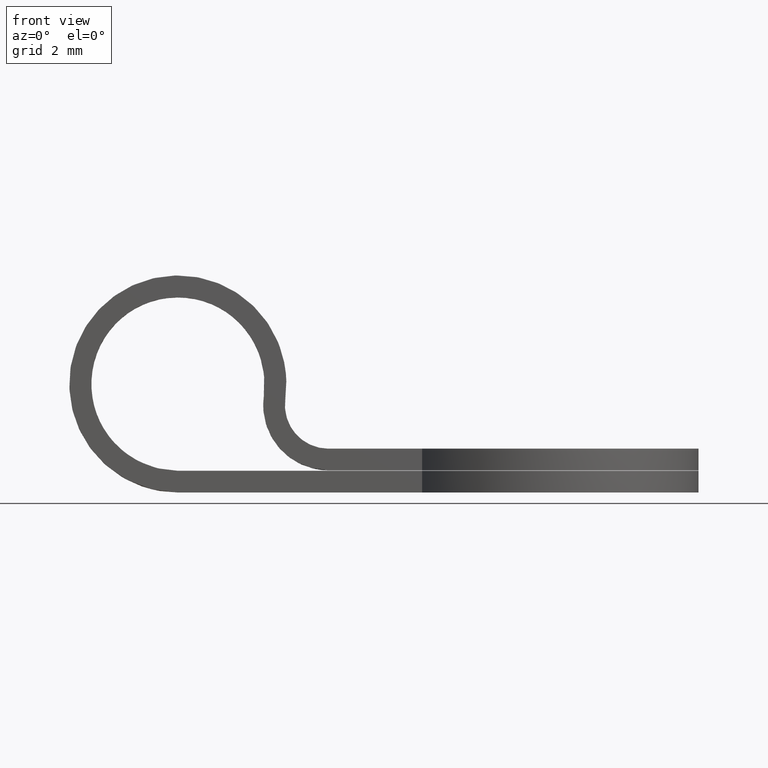
[diagram: clean part render]
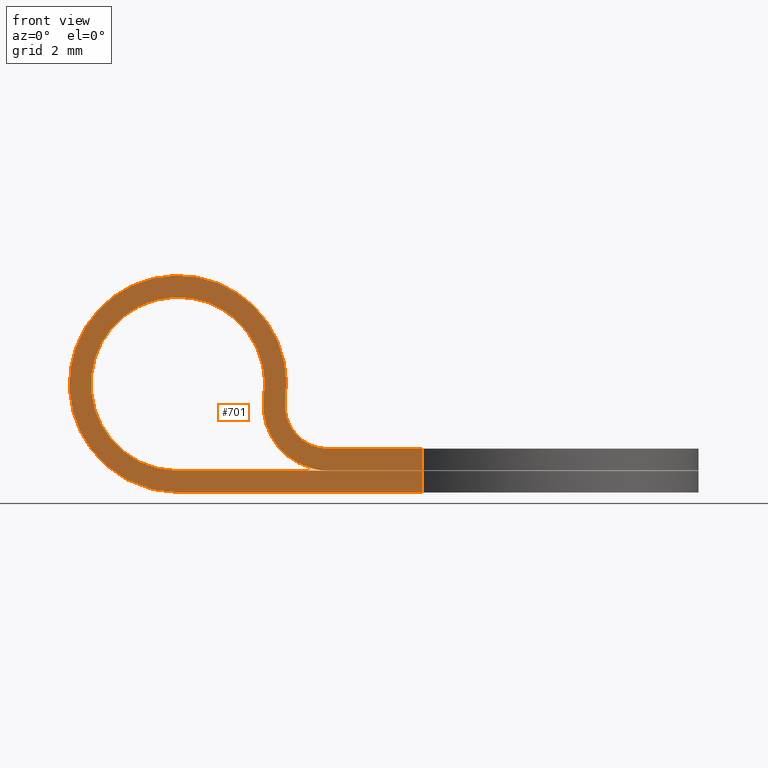
[diagram: same view with one face highlighted and labeled with its STEP entity id]
A machine part, front view. The second image highlights one B-rep face of the part: STEP entity #701.
In plain terms, the highlighted face is a freeform B-spline surface patch.
Its self-contained STEP definition (entity closure, byte-faithful):
#561=CARTESIAN_POINT('',(3.865530262456245,-2.000000000000225,-1.490000000000000));
#562=VERTEX_POINT('',#561);
#569=CARTESIAN_POINT('',(2.875378758897320,-2.000000000000225,-0.350000000000000));
#570=VERTEX_POINT('',#569);
#576=CARTESIAN_POINT('',(3.865530262456245,-2.000000000000225,-1.490000000000000));
#577=CARTESIAN_POINT('',(3.409551855881486,-2.000000000000225,-1.490000000000000));
#578=CARTESIAN_POINT('',(3.110546818929170,-2.000000000000225,-1.145743852430200));
#579=CARTESIAN_POINT('',(2.811541781976854,-2.000000000000225,-0.801487704860400));
#580=CARTESIAN_POINT('',(2.875378758897320,-2.000000000000225,-0.350000000000000));
#588=(BOUNDED_CURVE()B_SPLINE_CURVE(2,(#576,#577,#578,#579,#580),.UNSPECIFIED.,.F.,.U.)B_SPLINE_CURVE_WITH_KNOTS((3,2,3),(0.0,0.500000000000000,1.0),.UNSPECIFIED.)CURVE()GEOMETRIC_REPRESENTATION_ITEM()RATIONAL_B_SPLINE_CURVE((1.0,0.909874676103858,1.0,0.909874676103858,1.0))REPRESENTATION_ITEM(''));
#589=EDGE_CURVE('',#562,#570,#588,.T.);
#594=CARTESIAN_POINT('',(-2.503103197258242,-2.000000000000200,2.743662046927380));
#595=CARTESIAN_POINT('',(-2.503103197258242,-2.000000000000200,-2.749460498458957));
#596=CARTESIAN_POINT('',(6.433560996228009,-2.000000000000200,2.743662046927380));
#597=CARTESIAN_POINT('',(6.433560996228009,-2.000000000000200,-2.749460498458957));
#598=B_SPLINE_SURFACE_WITH_KNOTS('',1,1,((#594,#596),(#595,#597)),.UNSPECIFIED.,.F.,.F.,.U.,(2,2),(2,2),(0.0,5.493122545386338),(0.0,8.936664193486251),.UNSPECIFIED.);
#599=ORIENTED_EDGE('',*,*,#589,.T.);
#600=CARTESIAN_POINT('',(0.400000000000005,-2.000000000000225,-2.500000000000000));
#601=VERTEX_POINT('',#600);
#602=CARTESIAN_POINT('',(0.400000000000006,-2.000000000000225,-2.500000000000000));
#603=CARTESIAN_POINT('',(-1.334698287850557,-2.000000000000225,-2.500000000000000));
#604=CARTESIAN_POINT('',(-1.941863202883995,-2.000000000000225,-0.875029564630756));
#605=CARTESIAN_POINT('',(-2.549028117917433,-2.000000000000225,0.749940870738488));
#606=CARTESIAN_POINT('',(-1.239359631075495,-2.000000000000225,1.887458608817687));
#607=CARTESIAN_POINT('',(0.070308855766444,-2.000000000000225,3.024976346896888));
#608=CARTESIAN_POINT('',(1.594272687481420,-2.000000000000225,2.196295232416607));
#609=CARTESIAN_POINT('',(3.118236519196397,-2.000000000000225,1.367614117936327));
#610=CARTESIAN_POINT('',(2.875378758897318,-2.000000000000225,-0.350000000000000));
#618=(BOUNDED_CURVE()B_SPLINE_CURVE(2,(#602,#603,#604,#605,#606,#607,#608,#609,#610),.UNSPECIFIED.,.F.,.U.)B_SPLINE_CURVE_WITH_KNOTS((3,2,2,2,3),(0.0,0.250000000000000,0.500000000000000,0.750000000000000,1.0),.UNSPECIFIED.)CURVE()GEOMETRIC_REPRESENTATION_ITEM()RATIONAL_B_SPLINE_CURVE((1.0,0.821587434742129,1.0,0.821587434742129,1.0,0.821587434742129,1.0,0.821587434742129,1.0))REPRESENTATION_ITEM(''));
#619=EDGE_CURVE('',#601,#570,#618,.T.);
#620=ORIENTED_EDGE('',*,*,#619,.F.);
#621=CARTESIAN_POINT('',(6.027718691425030,-2.000000021102710,-2.499999999999945));
#622=VERTEX_POINT('',#621);
#623=CARTESIAN_POINT('',(6.027718691425030,-2.000000021102710,-2.499999999999945));
#624=CARTESIAN_POINT('',(0.400000000000005,-2.000000000000225,-2.500000000000000));
#625=QUASI_UNIFORM_CURVE('',1,(#623,#624),.UNSPECIFIED.,.F.,.U.);
#626=EDGE_CURVE('',#622,#601,#625,.T.);
#627=ORIENTED_EDGE('',*,*,#626,.F.);
#628=CARTESIAN_POINT('',(6.027718691425030,-2.000000021102710,-2.0));
#629=VERTEX_POINT('',#628);
#630=CARTESIAN_POINT('',(6.027718691425030,-2.000000021102710,-2.0));
#631=CARTESIAN_POINT('',(6.027718691425030,-2.000000021102710,-2.499999999999945));
#632=QUASI_UNIFORM_CURVE('',1,(#630,#631),.UNSPECIFIED.,.F.,.U.);
#633=EDGE_CURVE('',#629,#622,#632,.T.);
#634=ORIENTED_EDGE('',*,*,#633,.F.);
#635=CARTESIAN_POINT('',(0.400000000000006,-2.000000000000225,-2.0));
#636=VERTEX_POINT('',#635);
#637=CARTESIAN_POINT('',(0.400000000000006,-2.000000000000225,-2.0));
#638=CARTESIAN_POINT('',(6.027718691425030,-2.000000021102710,-2.0));
#639=QUASI_UNIFORM_CURVE('',1,(#637,#638),.UNSPECIFIED.,.F.,.U.);
#640=EDGE_CURVE('',#636,#629,#639,.T.);
#641=ORIENTED_EDGE('',*,*,#640,.F.);
#642=CARTESIAN_POINT('',(2.380303007117855,-2.000000000000225,-0.280000000000000));
#643=VERTEX_POINT('',#642);
#644=CARTESIAN_POINT('',(0.400000000000006,-2.000000000000225,-2.0));
#645=CARTESIAN_POINT('',(-0.987758630280445,-2.000000000000225,-2.000000000000000));
#646=CARTESIAN_POINT('',(-1.473490562307195,-2.000000000000225,-0.700023651704605));
#647=CARTESIAN_POINT('',(-1.959222494333946,-2.000000000000225,0.599952696590790));
#648=CARTESIAN_POINT('',(-0.911487704860395,-2.000000000000225,1.509966887054150));
#649=CARTESIAN_POINT('',(0.136247084613156,-2.000000000000225,2.419981077517510));
#650=CARTESIAN_POINT('',(1.355418149985137,-2.000000000000225,1.757036185933286));
#651=CARTESIAN_POINT('',(2.574589215357118,-2.000000000000225,1.094091294349062));
#652=CARTESIAN_POINT('',(2.380303007117856,-2.000000000000225,-0.280000000000000));
#660=(BOUNDED_CURVE()B_SPLINE_CURVE(2,(#644,#645,#646,#647,#648,#649,#650,#651,#652),.UNSPECIFIED.,.F.,.U.)B_SPLINE_CURVE_WITH_KNOTS((3,2,2,2,3),(0.0,0.250000000000000,0.500000000000000,0.750000000000000,1.0),.UNSPECIFIED.)CURVE()GEOMETRIC_REPRESENTATION_ITEM()RATIONAL_B_SPLINE_CURVE((1.0,0.821587434742129,1.0,0.821587434742129,1.0,0.821587434742129,1.0,0.821587434742129,1.0))REPRESENTATION_ITEM(''));
#661=EDGE_CURVE('',#636,#643,#660,.T.);
#662=ORIENTED_EDGE('',*,*,#661,.T.);
#663=CARTESIAN_POINT('',(3.865530262456245,-2.000000000000225,-1.990000000000000));
#664=VERTEX_POINT('',#663);
#665=CARTESIAN_POINT('',(3.865530262456245,-2.000000000000225,-1.990000000000000));
#666=CARTESIAN_POINT('',(3.181562652594107,-2.000000000000225,-1.990000000000000));
#667=CARTESIAN_POINT('',(2.733055097165632,-2.000000000000225,-1.473615778645300));
#668=CARTESIAN_POINT('',(2.284547541737158,-2.000000000000225,-0.957231557290600));
#669=CARTESIAN_POINT('',(2.380303007117858,-2.000000000000225,-0.280000000000000));
#677=(BOUNDED_CURVE()B_SPLINE_CURVE(2,(#665,#666,#667,#668,#669),.UNSPECIFIED.,.F.,.U.)B_SPLINE_CURVE_WITH_KNOTS((3,2,3),(0.0,0.500000000000000,1.0),.UNSPECIFIED.)CURVE()GEOMETRIC_REPRESENTATION_ITEM()RATIONAL_B_SPLINE_CURVE((1.0,0.909874676103858,1.0,0.909874676103858,1.0))REPRESENTATION_ITEM(''));
#678=EDGE_CURVE('',#664,#643,#677,.T.);
#679=ORIENTED_EDGE('',*,*,#678,.F.);
#680=CARTESIAN_POINT('',(6.027718691425030,-2.000000021102710,-1.990000000000045));
#681=VERTEX_POINT('',#680);
#682=CARTESIAN_POINT('',(6.027718691425030,-2.000000021102710,-1.990000000000045));
#683=CARTESIAN_POINT('',(3.865530262456245,-2.000000000000225,-1.990000000000000));
#684=QUASI_UNIFORM_CURVE('',1,(#682,#683),.UNSPECIFIED.,.F.,.U.);
#685=EDGE_CURVE('',#681,#664,#684,.T.);
#686=ORIENTED_EDGE('',*,*,#685,.F.);
#687=CARTESIAN_POINT('',(6.027718691425030,-2.000000021102710,-1.490000000000000));
#688=VERTEX_POINT('',#687);
#689=CARTESIAN_POINT('',(6.027718691425030,-2.000000021102710,-1.490000000000000));
#690=CARTESIAN_POINT('',(6.027718691425030,-2.000000021102710,-1.990000000000045));
#691=QUASI_UNIFORM_CURVE('',1,(#689,#690),.UNSPECIFIED.,.F.,.U.);
#692=EDGE_CURVE('',#688,#681,#691,.T.);
#693=ORIENTED_EDGE('',*,*,#692,.F.);
#694=CARTESIAN_POINT('',(3.865530262456245,-2.000000000000225,-1.490000000000000));
#695=CARTESIAN_POINT('',(6.027718691425030,-2.000000021102710,-1.490000000000000));
#696=QUASI_UNIFORM_CURVE('',1,(#694,#695),.UNSPECIFIED.,.F.,.U.);
#697=EDGE_CURVE('',#562,#688,#696,.T.);
#698=ORIENTED_EDGE('',*,*,#697,.F.);
#699=EDGE_LOOP('',(#599,#620,#627,#634,#641,#662,#679,#686,#693,#698));
#700=FACE_OUTER_BOUND('',#699,.T.);
#701=ADVANCED_FACE('',(#700),#598,.T.);